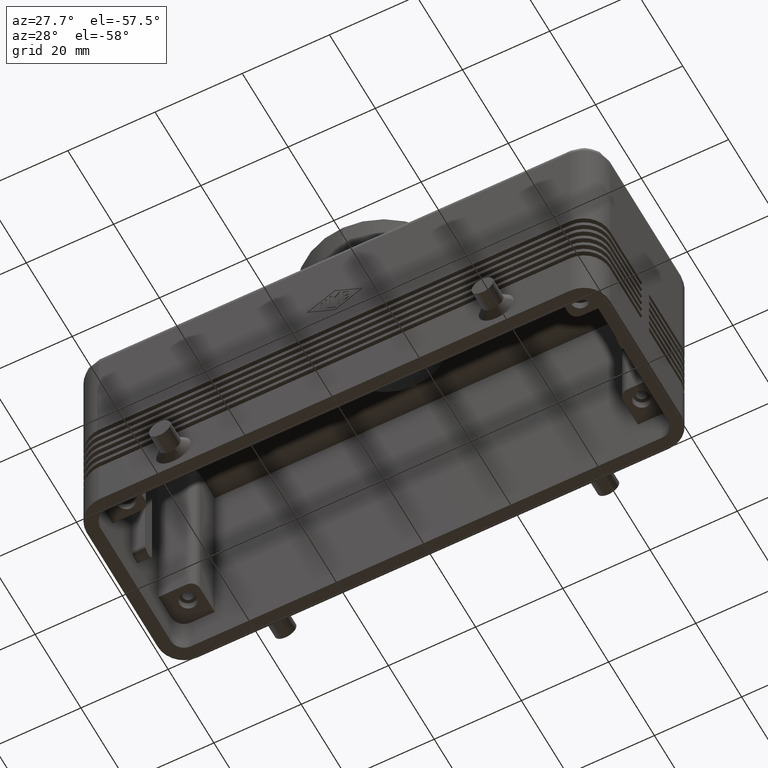
[diagram: clean part render]
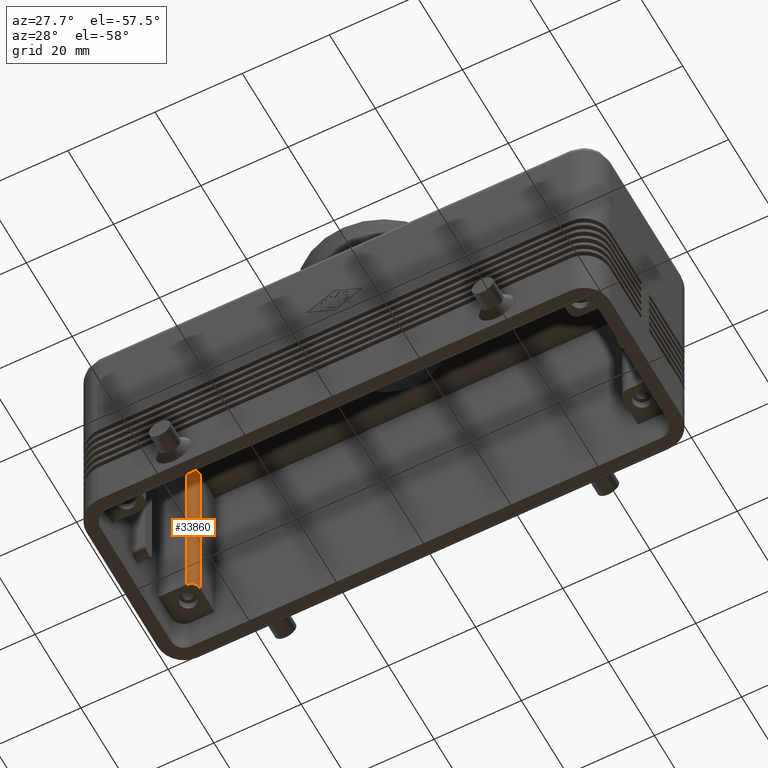
[diagram: same view with one face highlighted and labeled with its STEP entity id]
A machine part, auxiliary view. The second image highlights one B-rep face of the part: STEP entity #33860.
In plain terms, the highlighted cylindrical surface (edge-blend (fillet) strip) has radius 2 mm, axis along (0, 0, -1).
Its self-contained STEP definition (entity closure, byte-faithful):
#33450=CARTESIAN_POINT('',(-50.5,12.,26.));
#33460=DIRECTION('',(0.,0.,-1.));
#33470=DIRECTION('',(0.707106781186547,-0.707106781186548,0.));
#33480=AXIS2_PLACEMENT_3D('',#33450,#33460,#33470);
#33490=CYLINDRICAL_SURFACE('',#33480,2.);
#33500=CARTESIAN_POINT('',(-48.5,12.,9.));
#33510=DIRECTION('',(0.,0.,1.));
#33520=VECTOR('',#33510,43.);
#33530=LINE('',#33500,#33520);
#33540=CARTESIAN_POINT('',(-48.5,12.,9.));
#33550=VERTEX_POINT('',#33540);
#33560=CARTESIAN_POINT('',(-48.5,12.,52.));
#33570=VERTEX_POINT('',#33560);
#33580=EDGE_CURVE('',#33550,#33570,#33530,.T.);
#33590=ORIENTED_EDGE('',*,*,#33580,.T.);
#33600=CARTESIAN_POINT('',(-50.5,12.,9.));
#33610=DIRECTION('',(0.,0.,1.));
#33620=DIRECTION('',(0.707106781186547,-0.707106781186548,0.));
#33630=AXIS2_PLACEMENT_3D('',#33600,#33610,#33620);
#33640=CIRCLE('',#33630,2.);
#33650=CARTESIAN_POINT('',(-50.5,10.,9.));
#33660=VERTEX_POINT('',#33650);
#33670=EDGE_CURVE('',#33660,#33550,#33640,.T.);
#33680=ORIENTED_EDGE('',*,*,#33670,.T.);
#33690=CARTESIAN_POINT('',(-50.5,10.,52.));
#33700=DIRECTION('',(0.,0.,-1.));
#33710=VECTOR('',#33700,43.);
#33720=LINE('',#33690,#33710);
#33730=CARTESIAN_POINT('',(-50.5,10.,52.));
#33740=VERTEX_POINT('',#33730);
#33750=EDGE_CURVE('',#33740,#33660,#33720,.T.);
#33760=ORIENTED_EDGE('',*,*,#33750,.T.);
#33770=CARTESIAN_POINT('',(-50.5,12.,52.));
#33780=DIRECTION('',(0.,0.,1.));
#33790=DIRECTION('',(0.707106781186547,-0.707106781186548,0.));
#33800=AXIS2_PLACEMENT_3D('',#33770,#33780,#33790);
#33810=CIRCLE('',#33800,2.);
#33820=EDGE_CURVE('',#33740,#33570,#33810,.T.);
#33830=ORIENTED_EDGE('',*,*,#33820,.F.);
#33840=EDGE_LOOP('',(#33830,#33760,#33680,#33590));
#33850=FACE_OUTER_BOUND('',#33840,.T.);
#33860=ADVANCED_FACE('',(#33850),#33490,.T.);